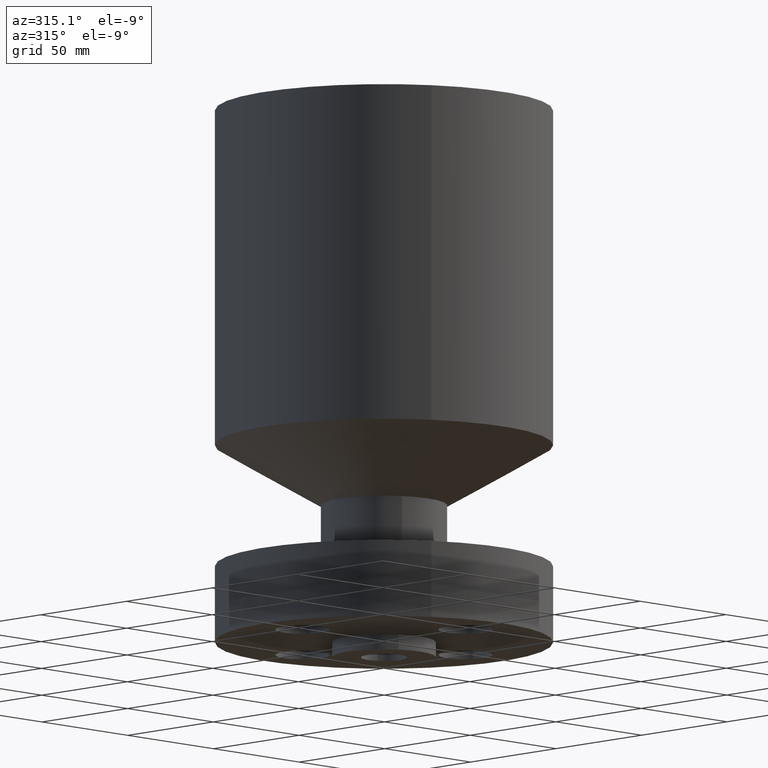
[diagram: clean part render]
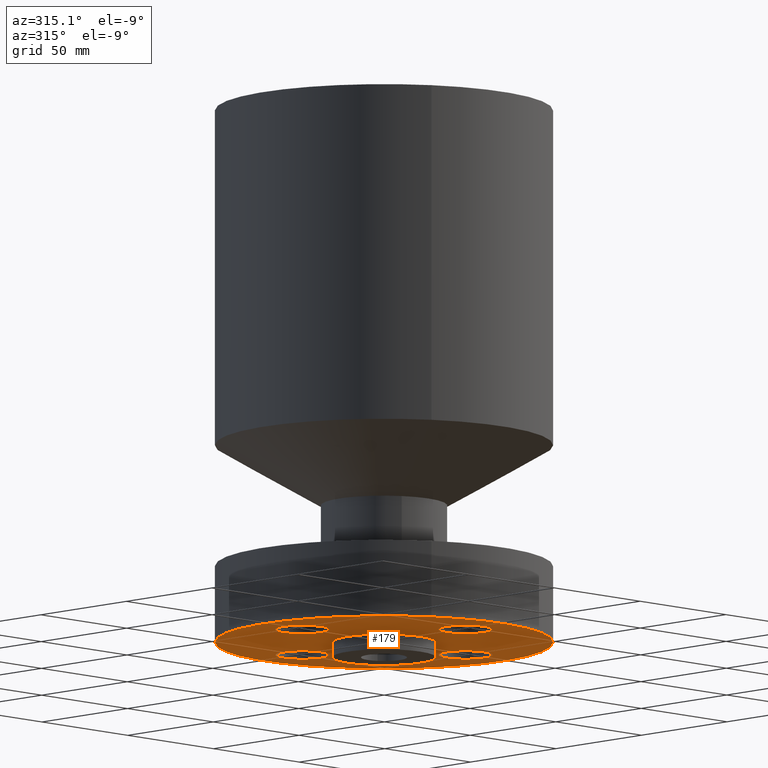
[diagram: same view with one face highlighted and labeled with its STEP entity id]
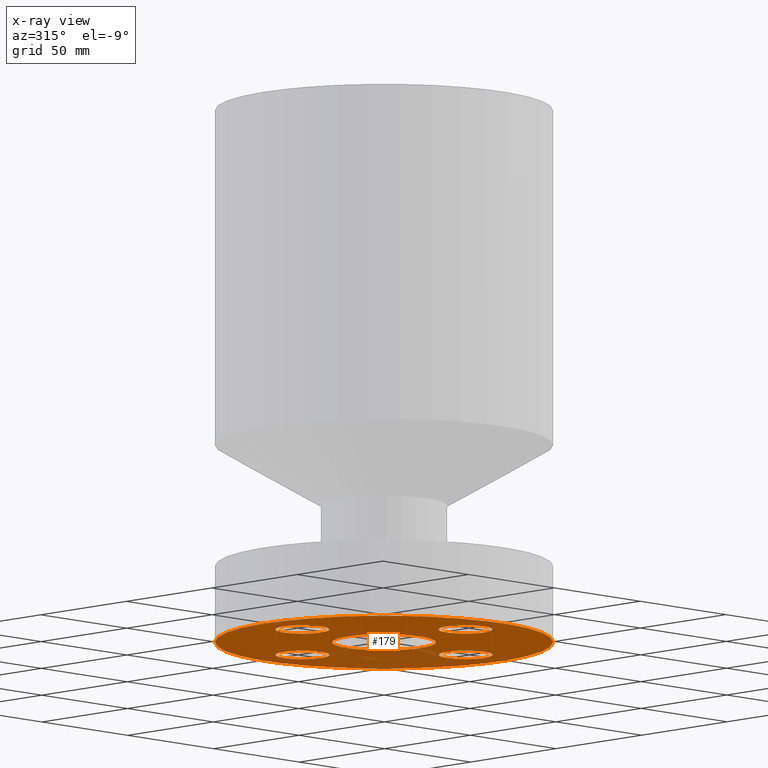
[diagram: x-ray of the same camera — body ghosted, the highlighted face saturated]
A machine part, auxiliary view. The second image highlights one B-rep face of the part: STEP entity #179.
The next image is the same camera in x-ray: the body ghosted, the highlighted face saturated — about 12% of this face is hidden behind the body in this view.
In plain terms, the highlighted planar face has unit normal (0, 0, -1).
Its self-contained STEP definition (entity closure, byte-faithful):
#51=AXIS2_PLACEMENT_3D('Circle Axis2P3D',#49,#50,$) ;
#78=AXIS2_PLACEMENT_3D('Plane Axis2P3D',#75,#76,#77) ;
#82=AXIS2_PLACEMENT_3D('Circle Axis2P3D',#80,#81,$) ;
#91=AXIS2_PLACEMENT_3D('Circle Axis2P3D',#89,#90,$) ;
#100=AXIS2_PLACEMENT_3D('Circle Axis2P3D',#98,#99,$) ;
#109=AXIS2_PLACEMENT_3D('Circle Axis2P3D',#107,#108,$) ;
#118=AXIS2_PLACEMENT_3D('Circle Axis2P3D',#116,#117,$) ;
#127=AXIS2_PLACEMENT_3D('Circle Axis2P3D',#125,#126,$) ;
#136=AXIS2_PLACEMENT_3D('Circle Axis2P3D',#134,#135,$) ;
#145=AXIS2_PLACEMENT_3D('Circle Axis2P3D',#143,#144,$) ;
#154=AXIS2_PLACEMENT_3D('Circle Axis2P3D',#152,#153,$) ;
#163=AXIS2_PLACEMENT_3D('Circle Axis2P3D',#161,#162,$) ;
#172=AXIS2_PLACEMENT_3D('Circle Axis2P3D',#170,#171,$) ;
#46=CARTESIAN_POINT('Vertex',(2.26113632724,0.210947236987,2.2401153548E-016)) ;
#49=CARTESIAN_POINT('Axis2P3D Location',(1.87500000001,0.,0.)) ;
#53=CARTESIAN_POINT('Vertex',(1.48886367277,-0.210947236987,2.2401153548E-016)) ;
#75=CARTESIAN_POINT('Axis2P3D Location',(0.,0.845000000003,0.)) ;
#80=CARTESIAN_POINT('Axis2P3D Location',(0.,0.,0.)) ;
#84=CARTESIAN_POINT('Vertex',(-1.31842023117,-2.41335204521,5.59482469102E-016)) ;
#86=CARTESIAN_POINT('Vertex',(1.31842023117,2.41335204521,5.59482469102E-016)) ;
#89=CARTESIAN_POINT('Axis2P3D Location',(0.,0.,0.)) ;
#98=CARTESIAN_POINT('Axis2P3D Location',(1.87500000001,0.,0.)) ;
#107=CARTESIAN_POINT('Axis2P3D Location',(0.,0.,0.)) ;
#111=CARTESIAN_POINT('Vertex',(0.405114580122,0.7415572648,0.)) ;
#113=CARTESIAN_POINT('Vertex',(-0.405114580122,-0.7415572648,0.)) ;
#116=CARTESIAN_POINT('Axis2P3D Location',(0.,0.,0.)) ;
#125=CARTESIAN_POINT('Axis2P3D Location',(3.49676543189E-017,-1.87500000001,0.)) ;
#129=CARTESIAN_POINT('Vertex',(0.210947236987,-2.26113632724,0.)) ;
#131=CARTESIAN_POINT('Vertex',(-0.210947236987,-1.48886367277,0.)) ;
#134=CARTESIAN_POINT('Axis2P3D Location',(1.39870617276E-016,-1.87500000001,0.)) ;
#143=CARTESIAN_POINT('Axis2P3D Location',(-1.87500000001,-2.79741234551E-016,0.)) ;
#147=CARTESIAN_POINT('Vertex',(-2.26113632724,-0.210947236987,0.)) ;
#149=CARTESIAN_POINT('Vertex',(-1.48886367277,0.210947236987,0.)) ;
#152=CARTESIAN_POINT('Axis2P3D Location',(-1.87500000001,-2.79741234551E-016,0.)) ;
#161=CARTESIAN_POINT('Axis2P3D Location',(-3.84644197508E-016,1.87500000001,0.)) ;
#165=CARTESIAN_POINT('Vertex',(-0.210947236987,2.26113632724,0.)) ;
#167=CARTESIAN_POINT('Vertex',(0.210947236987,1.48886367277,0.)) ;
#170=CARTESIAN_POINT('Axis2P3D Location',(-2.44773580232E-016,1.87500000001,0.)) ;
#50=DIRECTION('Axis2P3D Direction',(0.,-0.,0.0393700787402)) ;
#76=DIRECTION('Axis2P3D Direction',(0.,0.,-0.0393700787402)) ;
#77=DIRECTION('Axis2P3D XDirection',(0.0393700787402,0.,0.)) ;
#81=DIRECTION('Axis2P3D Direction',(0.,0.,-0.0393700787402)) ;
#90=DIRECTION('Axis2P3D Direction',(0.,0.,-0.0393700787402)) ;
#99=DIRECTION('Axis2P3D Direction',(0.,0.,-0.0393700787402)) ;
#108=DIRECTION('Axis2P3D Direction',(0.,0.,-0.0393700787402)) ;
#117=DIRECTION('Axis2P3D Direction',(0.,0.,-0.0393700787402)) ;
#126=DIRECTION('Axis2P3D Direction',(0.,0.,-0.0393700787402)) ;
#135=DIRECTION('Axis2P3D Direction',(0.,0.,-0.0393700787402)) ;
#144=DIRECTION('Axis2P3D Direction',(0.,0.,-0.0393700787402)) ;
#153=DIRECTION('Axis2P3D Direction',(0.,0.,-0.0393700787402)) ;
#162=DIRECTION('Axis2P3D Direction',(0.,0.,-0.0393700787402)) ;
#171=DIRECTION('Axis2P3D Direction',(0.,0.,-0.0393700787402)) ;
#95=ORIENTED_EDGE('',*,*,#88,.T.) ;
#96=ORIENTED_EDGE('',*,*,#93,.T.) ;
#104=ORIENTED_EDGE('',*,*,#102,.F.) ;
#105=ORIENTED_EDGE('',*,*,#55,.F.) ;
#122=ORIENTED_EDGE('',*,*,#115,.F.) ;
#123=ORIENTED_EDGE('',*,*,#120,.F.) ;
#140=ORIENTED_EDGE('',*,*,#133,.F.) ;
#141=ORIENTED_EDGE('',*,*,#138,.F.) ;
#158=ORIENTED_EDGE('',*,*,#151,.F.) ;
#159=ORIENTED_EDGE('',*,*,#156,.F.) ;
#176=ORIENTED_EDGE('',*,*,#169,.F.) ;
#177=ORIENTED_EDGE('',*,*,#174,.F.) ;
#106=FACE_BOUND('',#103,.T.) ;
#124=FACE_BOUND('',#121,.T.) ;
#142=FACE_BOUND('',#139,.T.) ;
#160=FACE_BOUND('',#157,.T.) ;
#178=FACE_BOUND('',#175,.T.) ;
#179=ADVANCED_FACE('PartBody',(#97,#106,#124,#142,#160,#178),#79,.T.) ;
#52=CIRCLE('generated circle',#51,0.440000000002) ;
#83=CIRCLE('generated circle',#82,2.75000000001) ;
#92=CIRCLE('generated circle',#91,2.75000000001) ;
#101=CIRCLE('generated circle',#100,0.440000000002) ;
#110=CIRCLE('generated circle',#109,0.845000000003) ;
#119=CIRCLE('generated circle',#118,0.845000000003) ;
#128=CIRCLE('generated circle',#127,0.440000000002) ;
#137=CIRCLE('generated circle',#136,0.440000000002) ;
#146=CIRCLE('generated circle',#145,0.440000000002) ;
#155=CIRCLE('generated circle',#154,0.440000000002) ;
#164=CIRCLE('generated circle',#163,0.440000000002) ;
#173=CIRCLE('generated circle',#172,0.440000000002) ;
#55=EDGE_CURVE('',#47,#54,#52,.F.) ;
#88=EDGE_CURVE('',#85,#87,#83,.T.) ;
#93=EDGE_CURVE('',#87,#85,#92,.T.) ;
#102=EDGE_CURVE('',#54,#47,#101,.T.) ;
#115=EDGE_CURVE('',#112,#114,#110,.T.) ;
#120=EDGE_CURVE('',#114,#112,#119,.T.) ;
#133=EDGE_CURVE('',#130,#132,#128,.T.) ;
#138=EDGE_CURVE('',#132,#130,#137,.T.) ;
#151=EDGE_CURVE('',#148,#150,#146,.T.) ;
#156=EDGE_CURVE('',#150,#148,#155,.T.) ;
#169=EDGE_CURVE('',#166,#168,#164,.T.) ;
#174=EDGE_CURVE('',#168,#166,#173,.T.) ;
#94=EDGE_LOOP('',(#95,#96)) ;
#103=EDGE_LOOP('',(#104,#105)) ;
#121=EDGE_LOOP('',(#122,#123)) ;
#139=EDGE_LOOP('',(#140,#141)) ;
#157=EDGE_LOOP('',(#158,#159)) ;
#175=EDGE_LOOP('',(#176,#177)) ;
#97=FACE_OUTER_BOUND('',#94,.T.) ;
#79=PLANE('',#78) ;
#47=VERTEX_POINT('',#46) ;
#54=VERTEX_POINT('',#53) ;
#85=VERTEX_POINT('',#84) ;
#87=VERTEX_POINT('',#86) ;
#112=VERTEX_POINT('',#111) ;
#114=VERTEX_POINT('',#113) ;
#130=VERTEX_POINT('',#129) ;
#132=VERTEX_POINT('',#131) ;
#148=VERTEX_POINT('',#147) ;
#150=VERTEX_POINT('',#149) ;
#166=VERTEX_POINT('',#165) ;
#168=VERTEX_POINT('',#167) ;